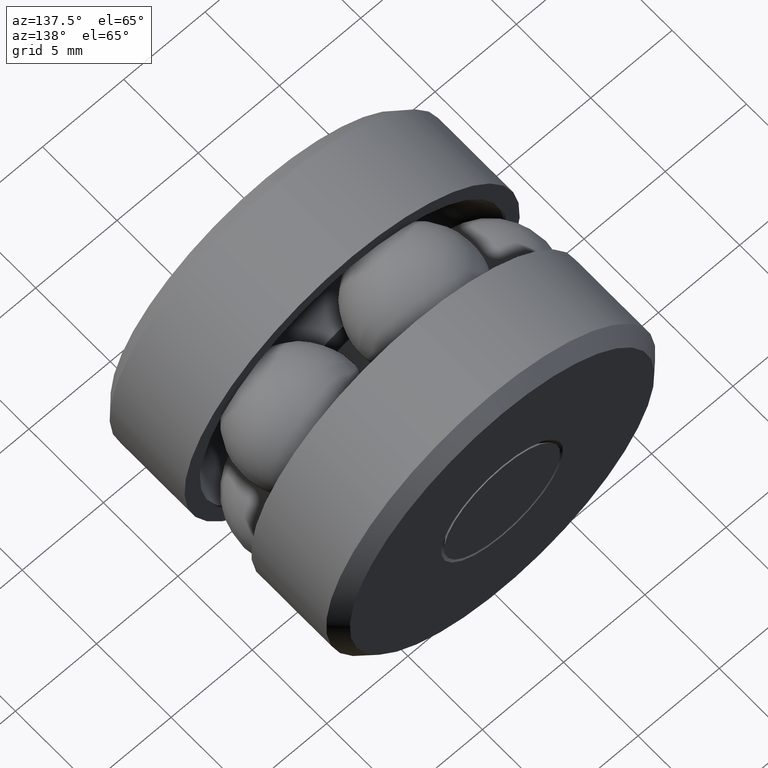
[diagram: clean part render]
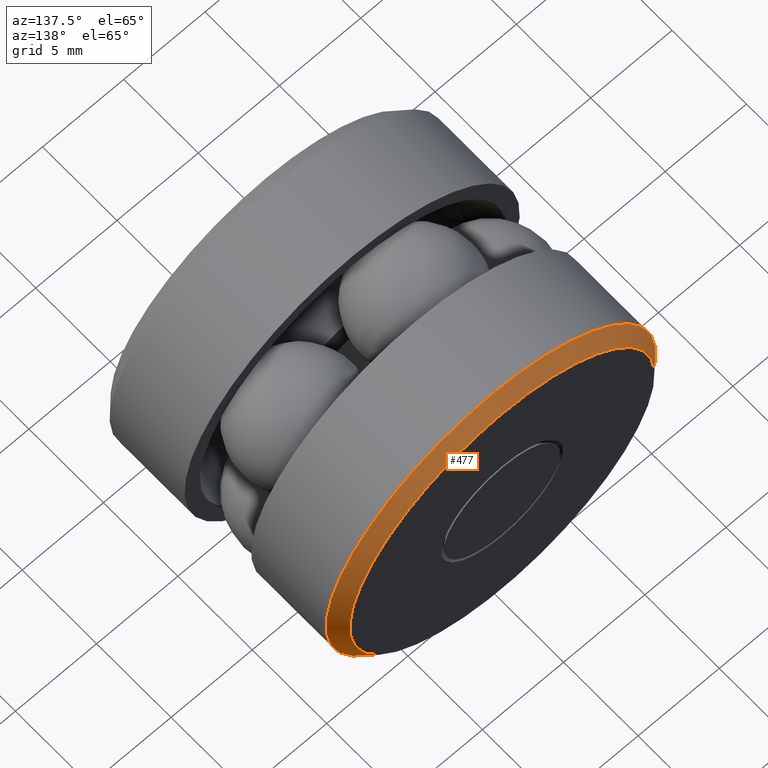
[diagram: same view with one face highlighted and labeled with its STEP entity id]
A machine part, auxiliary view. The second image highlights one B-rep face of the part: STEP entity #477.
In plain terms, the highlighted conical surface has half-angle 45 deg.
Its self-contained STEP definition (entity closure, byte-faithful):
#37 = EDGE_LOOP ( 'NONE', ( #335 ) ) ;
#42 = CIRCLE ( 'NONE', #71, 0.3692500000000000800 ) ;
#71 = AXIS2_PLACEMENT_3D ( 'NONE', #386, #415, #304 ) ;
#145 = EDGE_CURVE ( 'NONE', #425, #425, #42, .T. ) ;
#146 = CARTESIAN_POINT ( 'NONE',  ( 0.0000000000000000000, 0.6250000000000000000, 0.3692500000000000800 ) ) ;
#150 = FACE_BOUND ( 'NONE', #443, .T. ) ;
#189 = CARTESIAN_POINT ( 'NONE',  ( 0.0000000000000000000, 0.6250000000000000000, 0.0000000000000000000 ) ) ;
#200 = CIRCLE ( 'NONE', #414, 0.3992499999999999900 ) ;
#231 = CONICAL_SURFACE ( 'NONE', #403, 0.3692500000000000800, 0.7853981633974391800 ) ;
#289 = VERTEX_POINT ( 'NONE', #442 ) ;
#304 = DIRECTION ( 'NONE',  ( 0.0000000000000000000, 0.0000000000000000000, 1.000000000000000000 ) ) ;
#319 = EDGE_CURVE ( 'NONE', #289, #289, #200, .T. ) ;
#326 = DIRECTION ( 'NONE',  ( 0.0000000000000000000, 0.0000000000000000000, 1.000000000000000000 ) ) ;
#335 = ORIENTED_EDGE ( 'NONE', *, *, #319, .T. ) ;
#386 = CARTESIAN_POINT ( 'NONE',  ( 0.0000000000000000000, 0.6250000000000000000, 0.0000000000000000000 ) ) ;
#403 = AXIS2_PLACEMENT_3D ( 'NONE', #189, #430, #520 ) ;
#414 = AXIS2_PLACEMENT_3D ( 'NONE', #503, #540, #326 ) ;
#415 = DIRECTION ( 'NONE',  ( -0.0000000000000000000, 1.000000000000000000, -0.0000000000000000000 ) ) ;
#425 = VERTEX_POINT ( 'NONE', #146 ) ;
#430 = DIRECTION ( 'NONE',  ( 0.0000000000000000000, -1.000000000000000000, 0.0000000000000000000 ) ) ;
#442 = CARTESIAN_POINT ( 'NONE',  ( 0.0000000000000000000, 0.5949999999999996400, 0.3992499999999999900 ) ) ;
#443 = EDGE_LOOP ( 'NONE', ( #448 ) ) ;
#448 = ORIENTED_EDGE ( 'NONE', *, *, #145, .F. ) ;
#477 = ADVANCED_FACE ( 'NONE', ( #495, #150 ), #231, .T. ) ;
#495 = FACE_OUTER_BOUND ( 'NONE', #37, .T. ) ;
#503 = CARTESIAN_POINT ( 'NONE',  ( 0.0000000000000000000, 0.5949999999999996400, 0.0000000000000000000 ) ) ;
#520 = DIRECTION ( 'NONE',  ( 0.0000000000000000000, 0.0000000000000000000, -1.000000000000000000 ) ) ;
#540 = DIRECTION ( 'NONE',  ( -0.0000000000000000000, 1.000000000000000000, -0.0000000000000000000 ) ) ;